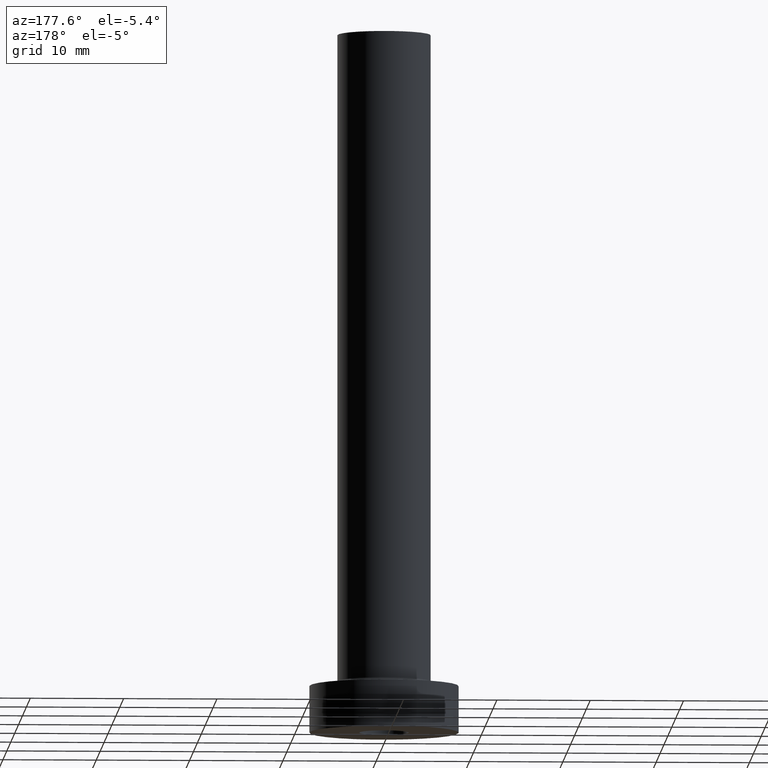
[diagram: clean part render]
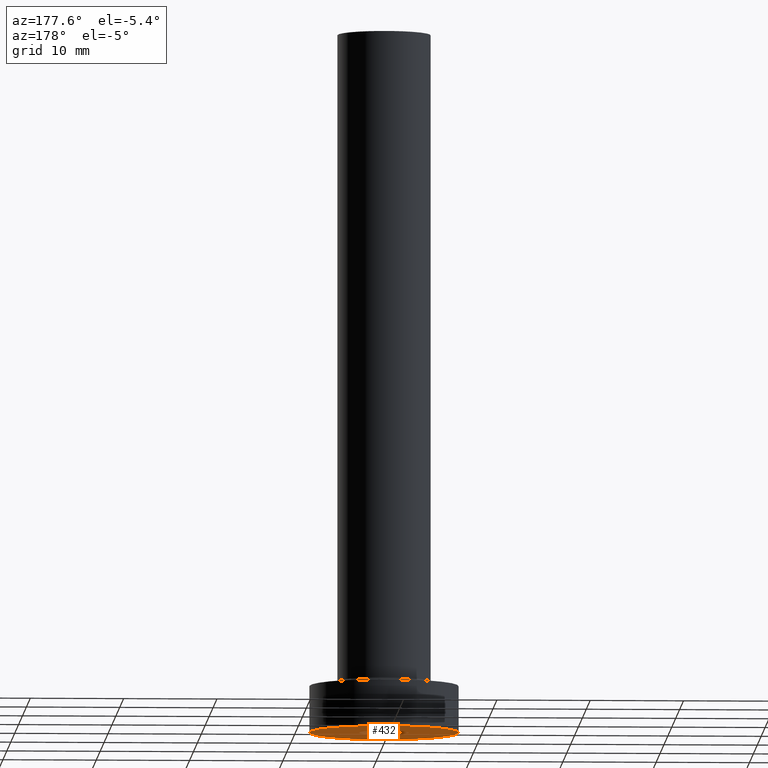
[diagram: same view with one face highlighted and labeled with its STEP entity id]
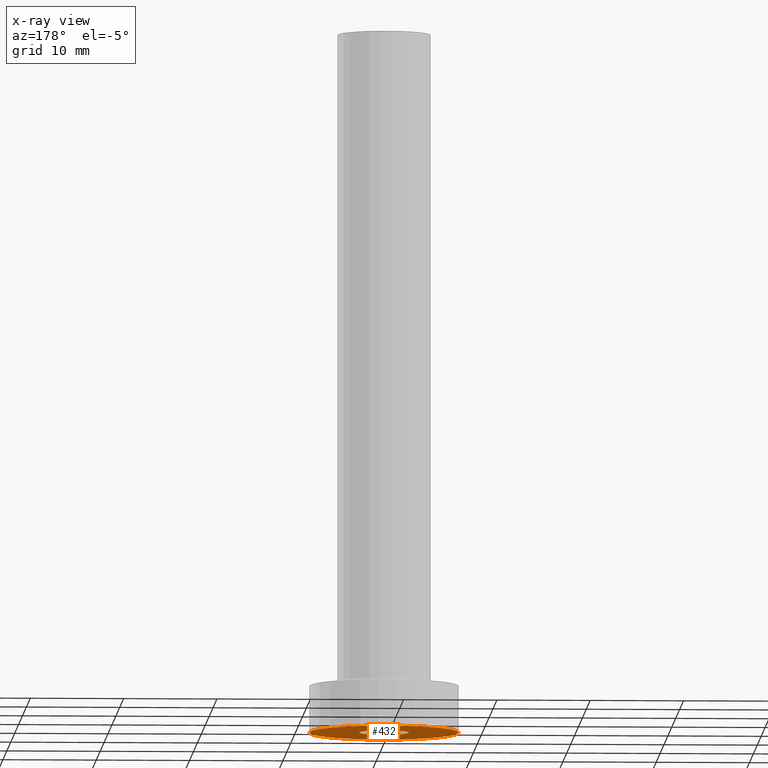
[diagram: x-ray of the same camera — body ghosted, the highlighted face saturated]
A machine part, auxiliary view. The second image highlights one B-rep face of the part: STEP entity #432.
The next image is the same camera in x-ray: the body ghosted, the highlighted face saturated — about 0% of this face is hidden behind the body in this view.
In plain terms, the highlighted planar face has unit normal (0, 0, 1).
Its self-contained STEP definition (entity closure, byte-faithful):
#5 = CARTESIAN_POINT ( 'NONE',  ( 8.000000000000000000, 9.797174393178825657E-16, 0.000000000000000000 ) ) ;
#21 = VERTEX_POINT ( 'NONE', #5 ) ;
#26 = AXIS2_PLACEMENT_3D ( 'NONE', #372, #392, #263 ) ;
#34 = EDGE_LOOP ( 'NONE', ( #425, #361 ) ) ;
#38 = EDGE_CURVE ( 'NONE', #169, #237, #203, .T. ) ;
#41 = DIRECTION ( 'NONE',  ( 1.000000000000000000, 0.000000000000000000, 0.000000000000000000 ) ) ;
#70 = DIRECTION ( 'NONE',  ( 1.000000000000000000, 0.000000000000000000, -0.000000000000000000 ) ) ;
#78 = CIRCLE ( 'NONE', #458, 8.000000000000000000 ) ;
#83 = CARTESIAN_POINT ( 'NONE',  ( 0.000000000000000000, 0.000000000000000000, 0.000000000000000000 ) ) ;
#89 = DIRECTION ( 'NONE',  ( -0.000000000000000000, -0.000000000000000000, -1.000000000000000000 ) ) ;
#96 = VERTEX_POINT ( 'NONE', #250 ) ;
#101 = CIRCLE ( 'NONE', #204, 8.000000000000000000 ) ;
#102 = AXIS2_PLACEMENT_3D ( 'NONE', #283, #239, #70 ) ;
#112 = FACE_OUTER_BOUND ( 'NONE', #222, .T. ) ;
#123 = EDGE_CURVE ( 'NONE', #237, #169, #427, .T. ) ;
#154 = FACE_BOUND ( 'NONE', #34, .T. ) ;
#169 = VERTEX_POINT ( 'NONE', #202 ) ;
#172 = DIRECTION ( 'NONE',  ( 0.000000000000000000, 0.000000000000000000, 1.000000000000000000 ) ) ;
#202 = CARTESIAN_POINT ( 'NONE',  ( -2.649999999999999911, 0.000000000000000000, 0.000000000000000000 ) ) ;
#203 = CIRCLE ( 'NONE', #363, 2.649999999999999911 ) ;
#204 = AXIS2_PLACEMENT_3D ( 'NONE', #83, #323, #281 ) ;
#222 = EDGE_LOOP ( 'NONE', ( #460, #291 ) ) ;
#237 = VERTEX_POINT ( 'NONE', #310 ) ;
#239 = DIRECTION ( 'NONE',  ( 0.000000000000000000, 0.000000000000000000, 1.000000000000000000 ) ) ;
#249 = PLANE ( 'NONE',  #102 ) ;
#250 = CARTESIAN_POINT ( 'NONE',  ( -8.000000000000000000, 0.000000000000000000, 0.000000000000000000 ) ) ;
#263 = DIRECTION ( 'NONE',  ( 1.000000000000000000, 0.000000000000000000, 0.000000000000000000 ) ) ;
#281 = DIRECTION ( 'NONE',  ( 1.000000000000000000, 0.000000000000000000, 0.000000000000000000 ) ) ;
#283 = CARTESIAN_POINT ( 'NONE',  ( 0.000000000000000000, 0.000000000000000000, 0.000000000000000000 ) ) ;
#291 = ORIENTED_EDGE ( 'NONE', *, *, #448, .F. ) ;
#299 = EDGE_CURVE ( 'NONE', #96, #21, #101, .T. ) ;
#307 = DIRECTION ( 'NONE',  ( 1.000000000000000000, 0.000000000000000000, 0.000000000000000000 ) ) ;
#310 = CARTESIAN_POINT ( 'NONE',  ( 2.649999999999999911, 3.245314017740485469E-16, 0.000000000000000000 ) ) ;
#323 = DIRECTION ( 'NONE',  ( 0.000000000000000000, 0.000000000000000000, 1.000000000000000000 ) ) ;
#361 = ORIENTED_EDGE ( 'NONE', *, *, #123, .F. ) ;
#363 = AXIS2_PLACEMENT_3D ( 'NONE', #399, #89, #41 ) ;
#372 = CARTESIAN_POINT ( 'NONE',  ( 0.000000000000000000, 0.000000000000000000, 0.000000000000000000 ) ) ;
#392 = DIRECTION ( 'NONE',  ( -0.000000000000000000, -0.000000000000000000, -1.000000000000000000 ) ) ;
#399 = CARTESIAN_POINT ( 'NONE',  ( 0.000000000000000000, 0.000000000000000000, 0.000000000000000000 ) ) ;
#425 = ORIENTED_EDGE ( 'NONE', *, *, #38, .F. ) ;
#426 = CARTESIAN_POINT ( 'NONE',  ( 0.000000000000000000, 0.000000000000000000, 0.000000000000000000 ) ) ;
#427 = CIRCLE ( 'NONE', #26, 2.649999999999999911 ) ;
#432 = ADVANCED_FACE ( 'NONE', ( #154, #112 ), #249, .F. ) ;
#448 = EDGE_CURVE ( 'NONE', #21, #96, #78, .T. ) ;
#458 = AXIS2_PLACEMENT_3D ( 'NONE', #426, #172, #307 ) ;
#460 = ORIENTED_EDGE ( 'NONE', *, *, #299, .F. ) ;